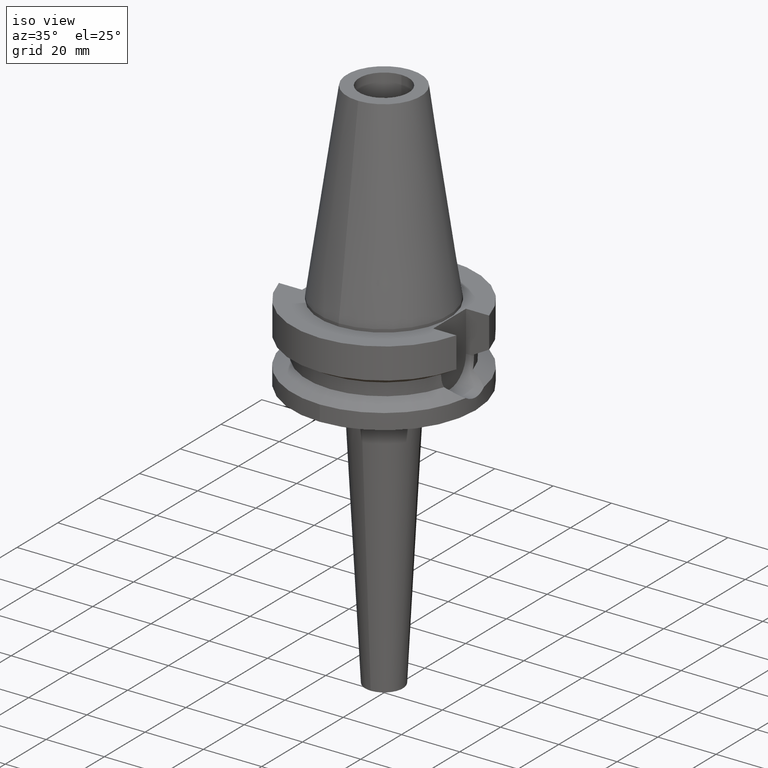
[diagram: clean part render]
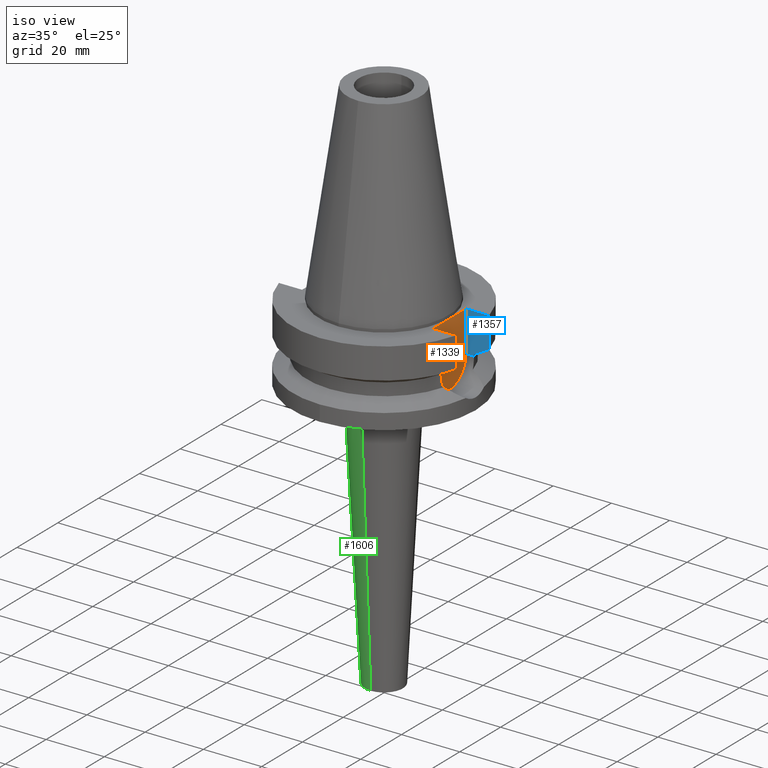
[diagram: same view with three faces highlighted in distinct colors, each labeled with its STEP entity id]
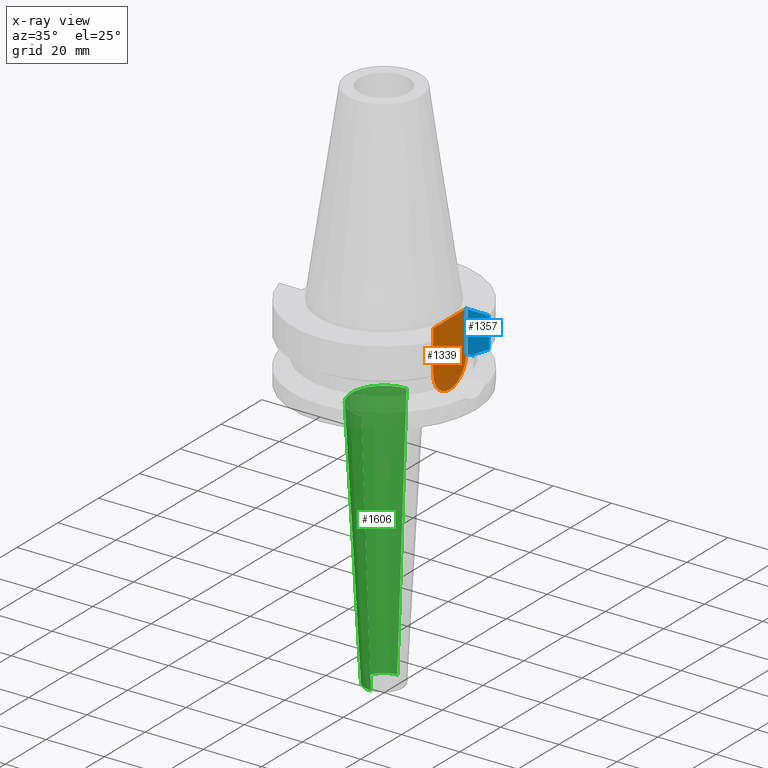
[diagram: x-ray of the same camera — body ghosted, the three highlighted faces saturated]
A machine part, iso view with three faces highlighted in distinct colors.
The next image is the same camera in x-ray (body ghosted, the three faces saturated) — at least one of them is partly hidden behind the body in this view.
Their STEP definitions:

[orange] entity #1339 — the highlighted planar face has unit normal (1, 0, 0).
#124=DIRECTION('',(0.E0,-1.E0,0.E0));
#125=VECTOR('',#124,1.61E1);
#126=CARTESIAN_POINT('',(2.25E1,8.05E0,-1.E0));
#127=LINE('',#126,#125);
#307=DIRECTION('',(0.E0,0.E0,-1.E0));
#308=VECTOR('',#307,1.395E1);
#309=CARTESIAN_POINT('',(2.25E1,8.05E0,-1.E0));
#310=LINE('',#309,#308);
#314=CARTESIAN_POINT('',(2.25E1,0.E0,-1.495E1));
#315=DIRECTION('',(-1.E0,0.E0,0.E0));
#316=DIRECTION('',(0.E0,1.E0,0.E0));
#317=AXIS2_PLACEMENT_3D('',#314,#315,#316);
#322=CARTESIAN_POINT('',(2.25E1,0.E0,-1.495E1));
#323=DIRECTION('',(-1.E0,0.E0,0.E0));
#324=DIRECTION('',(0.E0,0.E0,-1.E0));
#325=AXIS2_PLACEMENT_3D('',#322,#323,#324);
#330=DIRECTION('',(0.E0,0.E0,1.E0));
#331=VECTOR('',#330,1.395E1);
#332=CARTESIAN_POINT('',(2.25E1,-8.05E0,-1.495E1));
#333=LINE('',#332,#331);
#1036=CARTESIAN_POINT('',(2.25E1,-8.05E0,-1.495E1));
#1037=VERTEX_POINT('',#1036);
#1038=CARTESIAN_POINT('',(2.25E1,0.E0,-2.3E1));
#1039=VERTEX_POINT('',#1038);
#1040=CARTESIAN_POINT('',(2.25E1,8.05E0,-1.495E1));
#1041=VERTEX_POINT('',#1040);
#1088=CARTESIAN_POINT('',(2.25E1,8.05E0,-1.E0));
#1089=VERTEX_POINT('',#1088);
#1090=CARTESIAN_POINT('',(2.25E1,-8.05E0,-1.E0));
#1091=VERTEX_POINT('',#1090);
#1324=CARTESIAN_POINT('',(2.25E1,0.E0,0.E0));
#1325=DIRECTION('',(1.E0,0.E0,0.E0));
#1326=DIRECTION('',(0.E0,0.E0,-1.E0));
#1327=AXIS2_PLACEMENT_3D('',#1324,#1325,#1326);
#1328=PLANE('',#1327);
#1329=ORIENTED_EDGE('',*,*,#1201,.F.);
#1331=ORIENTED_EDGE('',*,*,#1330,.T.);
#1333=ORIENTED_EDGE('',*,*,#1332,.T.);
#1335=ORIENTED_EDGE('',*,*,#1334,.T.);
#1336=ORIENTED_EDGE('',*,*,#1317,.T.);
#1337=EDGE_LOOP('',(#1329,#1331,#1333,#1335,#1336));
#1338=FACE_OUTER_BOUND('',#1337,.F.);
#318=CIRCLE('',#317,8.05E0);
#326=CIRCLE('',#325,8.05E0);
#1201=EDGE_CURVE('',#1089,#1091,#127,.T.);
#1317=EDGE_CURVE('',#1037,#1091,#333,.T.);
#1330=EDGE_CURVE('',#1089,#1041,#310,.T.);
#1332=EDGE_CURVE('',#1041,#1039,#318,.T.);
#1334=EDGE_CURVE('',#1039,#1037,#326,.T.);
#1339=ADVANCED_FACE('',(#1338),#1328,.T.);

[blue] entity #1357 — the highlighted planar face has unit normal (0, 1, 0).
#307=DIRECTION('',(0.E0,0.E0,-1.E0));
#308=VECTOR('',#307,1.395E1);
#309=CARTESIAN_POINT('',(2.25E1,8.05E0,-1.E0));
#310=LINE('',#309,#308);
#337=DIRECTION('',(1.E0,-3.506251283226E-14,0.E0));
#338=VECTOR('',#337,7.954022722788E0);
#339=CARTESIAN_POINT('',(2.25E1,8.05E0,-1.E0));
#340=LINE('',#339,#338);
#344=CARTESIAN_POINT('',(3.045402291368E1,8.049999277813E0,-1.156551215725E1));
#345=CARTESIAN_POINT('',(2.987645774336E1,8.049999277813E0,-1.188789690733E1));
#346=CARTESIAN_POINT('',(2.872091199483E1,8.049999725820E0,-1.253193850520E1));
#347=CARTESIAN_POINT('',(2.698538662860E1,8.050002042911E0,-1.349404337726E1));
#348=CARTESIAN_POINT('',(2.582730530281E1,8.049995415996E0,-1.413348340763E1));
#349=CARTESIAN_POINT('',(2.524772413115E1,8.049995415996E0,-1.445229202639E1));
#381=DIRECTION('',(2.936593422268E-6,-9.210228945046E-6,9.999999999533E-1));
#382=VECTOR('',#381,4.977079736364E-1);
#383=CARTESIAN_POINT('',(2.524772266958E1,8.05E0,-1.495E1));
#384=LINE('',#383,#382);
#437=DIRECTION('',(-1.806793232962E-8,6.835318680890E-8,1.E0));
#438=VECTOR('',#437,1.056551215725E1);
#439=CARTESIAN_POINT('',(3.045402291368E1,8.049999277813E0,-1.156551215725E1));
#440=LINE('',#439,#438);
#519=DIRECTION('',(1.E0,-1.551559937893E-14,0.E0));
#520=VECTOR('',#519,2.747722669580E0);
#521=CARTESIAN_POINT('',(2.25E1,8.05E0,-1.495E1));
#522=LINE('',#521,#520);
#1040=CARTESIAN_POINT('',(2.25E1,8.05E0,-1.495E1));
#1041=VERTEX_POINT('',#1040);
#1042=CARTESIAN_POINT('',(2.524772266958E1,8.05E0,-1.495E1));
#1043=VERTEX_POINT('',#1042);
#1070=CARTESIAN_POINT('',(2.524772413115E1,8.049995415996E0,-1.445229202639E1));
#1071=VERTEX_POINT('',#1070);
#1085=CARTESIAN_POINT('',(3.045402272279E1,8.05E0,-1.E0));
#1087=VERTEX_POINT('',#1085);
#1088=CARTESIAN_POINT('',(2.25E1,8.05E0,-1.E0));
#1089=VERTEX_POINT('',#1088);
#1109=VERTEX_POINT('',#344);
#1340=CARTESIAN_POINT('',(2.25E1,8.05E0,-1.495E1));
#1341=DIRECTION('',(0.E0,1.E0,0.E0));
#1342=DIRECTION('',(0.E0,0.E0,1.E0));
#1343=AXIS2_PLACEMENT_3D('',#1340,#1341,#1342);
#1344=PLANE('',#1343);
#1346=ORIENTED_EDGE('',*,*,#1345,.F.);
#1348=ORIENTED_EDGE('',*,*,#1347,.F.);
#1349=ORIENTED_EDGE('',*,*,#1330,.F.);
#1350=ORIENTED_EDGE('',*,*,#1199,.T.);
#1352=ORIENTED_EDGE('',*,*,#1351,.F.);
#1354=ORIENTED_EDGE('',*,*,#1353,.T.);
#1355=EDGE_LOOP('',(#1346,#1348,#1349,#1350,#1352,#1354));
#1356=FACE_OUTER_BOUND('',#1355,.F.);
#350=B_SPLINE_CURVE_WITH_KNOTS('',3,(#344,#345,#346,#347,#348,#349),
.UNSPECIFIED.,.F.,.F.,(4,1,1,4),(0.E0,3.333333333333E-1,6.666666666667E-1,1.E0),
.UNSPECIFIED.);
#1199=EDGE_CURVE('',#1089,#1087,#340,.T.);
#1330=EDGE_CURVE('',#1089,#1041,#310,.T.);
#1345=EDGE_CURVE('',#1043,#1071,#384,.T.);
#1347=EDGE_CURVE('',#1041,#1043,#522,.T.);
#1351=EDGE_CURVE('',#1109,#1087,#440,.T.);
#1353=EDGE_CURVE('',#1109,#1071,#350,.T.);
#1357=ADVANCED_FACE('',(#1356),#1344,.F.);

[green] entity #1606 — the highlighted conical surface has half-angle 3 deg.
#666=CARTESIAN_POINT('',(0.E0,0.E0,-3.3E1));
#667=DIRECTION('',(0.E0,0.E0,-1.E0));
#668=DIRECTION('',(0.E0,-1.E0,0.E0));
#669=AXIS2_PLACEMENT_3D('',#666,#667,#668);
#681=DIRECTION('',(0.E0,-5.233595624292E-2,-9.986295347546E-1));
#682=VECTOR('',#681,8.711939410182E1);
#683=CARTESIAN_POINT('',(0.E0,1.105947679762E1,-3.3E1));
#684=LINE('',#683,#682);
#696=DIRECTION('',(0.E0,5.233595624292E-2,-9.986295347546E-1));
#697=VECTOR('',#696,8.711939410182E1);
#698=CARTESIAN_POINT('',(0.E0,-1.105947679762E1,-3.3E1));
#699=LINE('',#698,#697);
#711=CARTESIAN_POINT('',(0.E0,0.E0,-1.2E2));
#712=DIRECTION('',(0.E0,0.E0,1.E0));
#713=DIRECTION('',(0.E0,1.E0,0.E0));
#714=AXIS2_PLACEMENT_3D('',#711,#712,#713);
#1011=CARTESIAN_POINT('',(0.E0,-6.5E0,-1.2E2));
#1012=CARTESIAN_POINT('',(0.E0,6.5E0,-1.2E2));
#1013=VERTEX_POINT('',#1011);
#1014=VERTEX_POINT('',#1012);
#1015=CARTESIAN_POINT('',(0.E0,1.105947679762E1,-3.3E1));
#1016=VERTEX_POINT('',#1015);
#1017=CARTESIAN_POINT('',(0.E0,-1.105947679762E1,-3.3E1));
#1018=VERTEX_POINT('',#1017);
#1594=CARTESIAN_POINT('',(0.E0,0.E0,-7.65E1));
#1595=DIRECTION('',(0.E0,0.E0,1.E0));
#1596=DIRECTION('',(0.E0,1.E0,0.E0));
#1597=AXIS2_PLACEMENT_3D('',#1594,#1595,#1596);
#1598=CONICAL_SURFACE('',#1597,8.779738398812E0,3.E0);
#1599=ORIENTED_EDGE('',*,*,#1584,.F.);
#1600=ORIENTED_EDGE('',*,*,#1561,.F.);
#1601=ORIENTED_EDGE('',*,*,#1588,.T.);
#1603=ORIENTED_EDGE('',*,*,#1602,.F.);
#1604=EDGE_LOOP('',(#1599,#1600,#1601,#1603));
#1605=FACE_OUTER_BOUND('',#1604,.F.);
#670=CIRCLE('',#669,1.105947679762E1);
#715=CIRCLE('',#714,6.5E0);
#1561=EDGE_CURVE('',#1018,#1016,#670,.T.);
#1584=EDGE_CURVE('',#1016,#1014,#684,.T.);
#1588=EDGE_CURVE('',#1018,#1013,#699,.T.);
#1602=EDGE_CURVE('',#1014,#1013,#715,.T.);
#1606=ADVANCED_FACE('',(#1605),#1598,.T.);